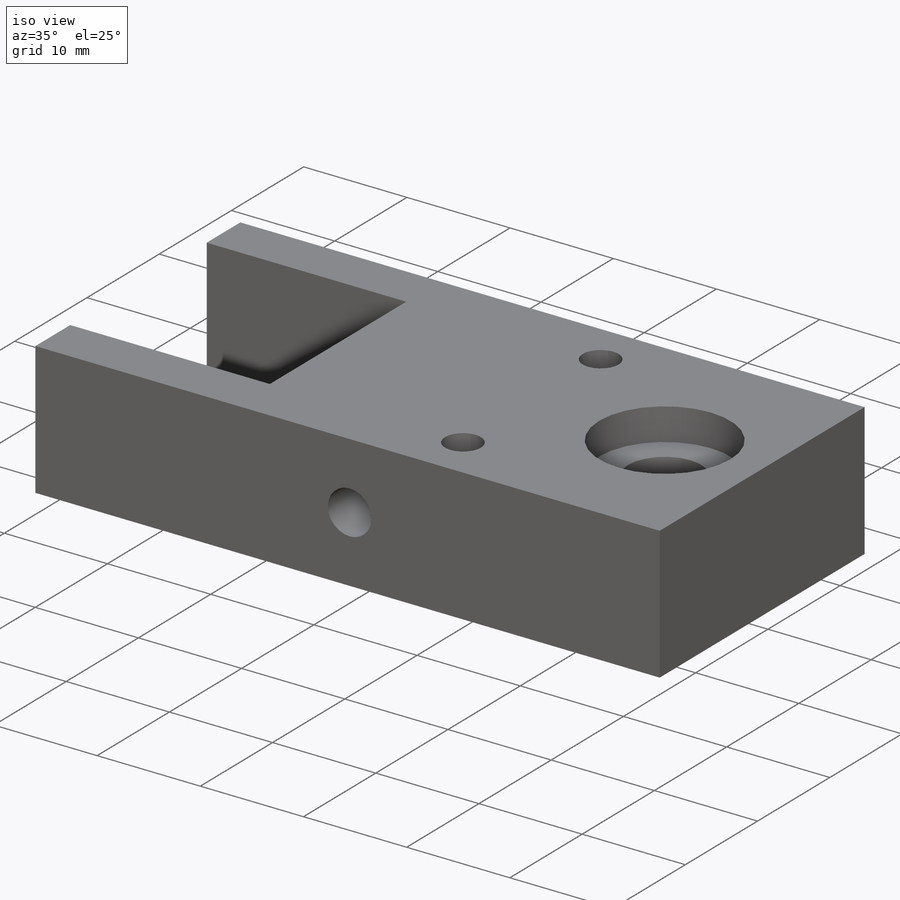
[diagram: iso view]
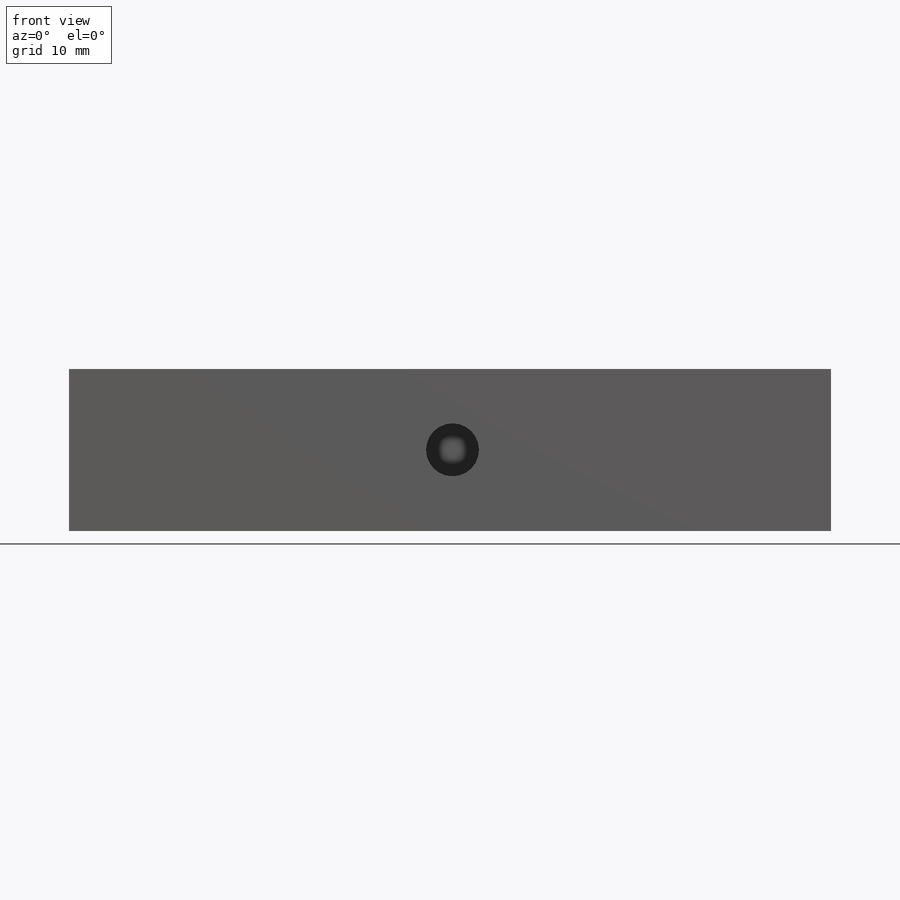
[diagram: front view]
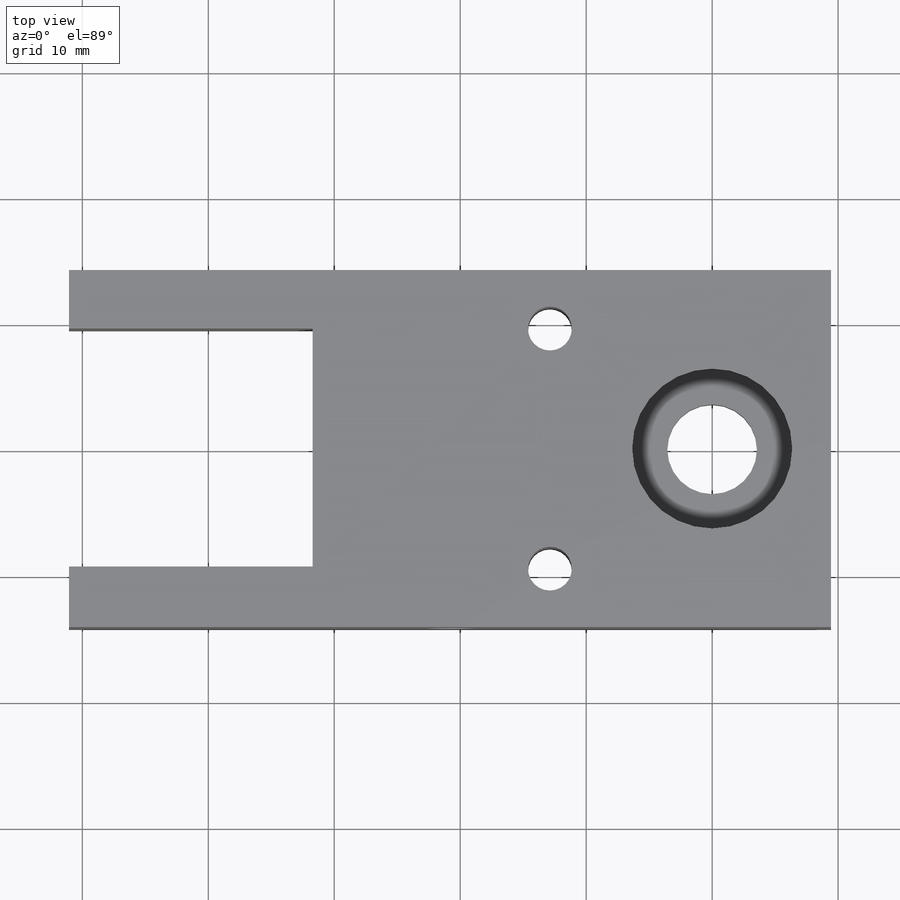
[diagram: top view]
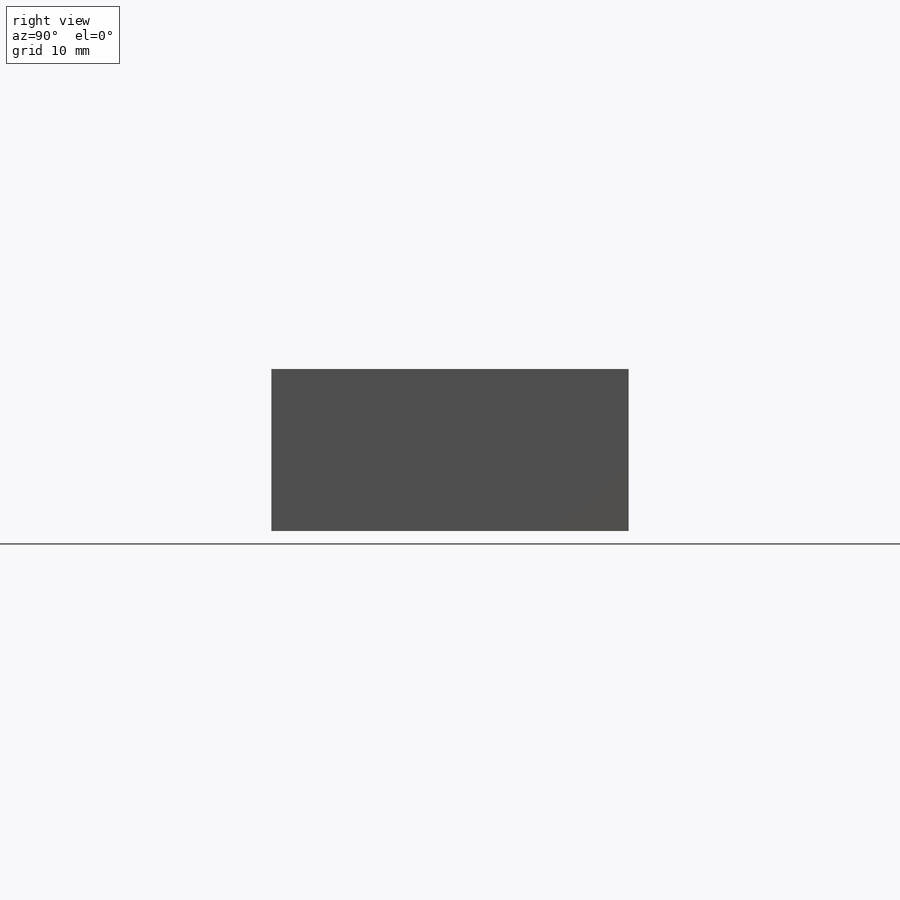
[diagram: right view]
SOLIDWORKS PART (.sldprt)
format: sldprt  version: not decoded by parser v0  size: 494,592 bytes
history: native  units: mm
features: sketch x7, cut_extrude x6, material x1, extrude x1, thread x1 (+16 scaffold rows collapsed)
feature tree (32):
  scaffold x16  (default folders/planes/origin — collapsed)
  material  "1060 Alloy"
  sketch  "Sketch1"  dims[c1.D1=7.12mm c1.D2=60.5mm c1.D3=28.36mm c1.D4=4.82mm c1.D5=41.16mm c2.D4=4.82mm c2.D6=4.65mm]
  extrude  "Boss-Extrude1"  Depth=12.86mm
  sketch  "Sketch2"  dims[D1=4.17mm]
  cut_extrude  "Cut-Extrude1"  Depth=12.7mm
  sketch  "Sketch3"  dims[D1=12.7mm]
  cut_extrude  "Cut-Extrude2"  Depth=3.12mm
  sketch  "Sketch4"  dims[D1=11.14mm]
  cut_extrude  "Cut-Extrude3"  Depth=6.08mm
  sketch  "Sketch5"  dims[D2=3.48mm D1=15.58mm D3=20.58mm]
  cut_extrude  "Cut-Extrude4"  [1 undecoded]
  sketch  "Sketch6"  dims[D2=3.47mm D1=28.32mm]
  cut_extrude  "8-32"  Depth=5mm
  sketch  "Sketch7"  dims[D1=4.2mm]
  cut_extrude  "Cut-Extrude5"  [1 undecoded]
  thread  "Cosmetic Thread1"  Diameter=8mm  [1 undecoded]
decode coverage: 13 of 15 modeling features carry decoded parameters
note: 3 parameter values undecoded
note: suppression state not decoded; provenance and decode notes live in map.json
